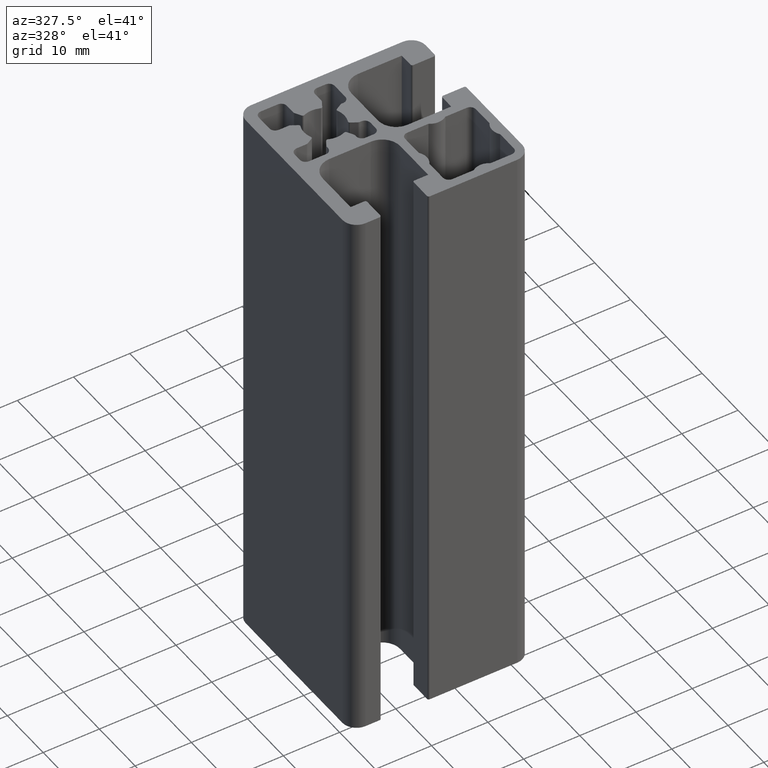
[diagram: clean part render]
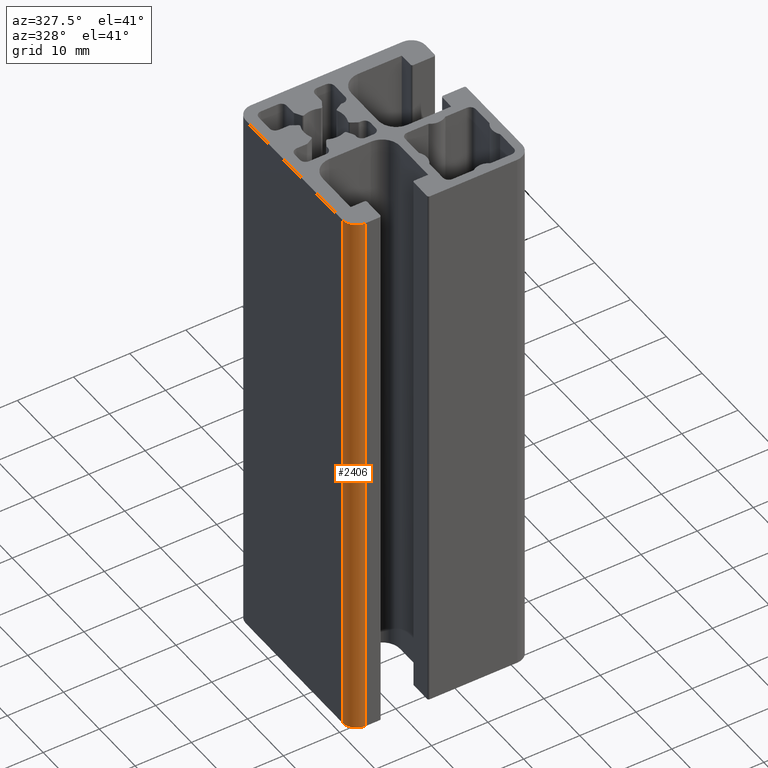
[diagram: same view with one face highlighted and labeled with its STEP entity id]
A machine part, auxiliary view. The second image highlights one B-rep face of the part: STEP entity #2406.
In plain terms, the highlighted cylindrical surface (edge-blend (fillet) strip) has radius 2.5 mm, axis along (0, 0, 1).
Its self-contained STEP definition (entity closure, byte-faithful):
#149=CIRCLE('',#2660,2.5);
#151=CIRCLE('',#2663,2.5);
#219=CYLINDRICAL_SURFACE('',#2662,2.5);
#336=FACE_OUTER_BOUND('',#460,.T.);
#460=EDGE_LOOP('',(#2087,#2088,#2089,#2090));
#685=LINE('',#4113,#909);
#686=LINE('',#4116,#910);
#909=VECTOR('',#3383,100.);
#910=VECTOR('',#3386,100.);
#1150=VERTEX_POINT('',#4103);
#1151=VERTEX_POINT('',#4105);
#1153=VERTEX_POINT('',#4112);
#1154=VERTEX_POINT('',#4114);
#1501=EDGE_CURVE('',#1151,#1150,#149,.T.);
#1505=EDGE_CURVE('',#1153,#1150,#685,.T.);
#1506=EDGE_CURVE('',#1154,#1153,#151,.T.);
#1507=EDGE_CURVE('',#1154,#1151,#686,.T.);
#2087=ORIENTED_EDGE('',*,*,#1501,.T.);
#2088=ORIENTED_EDGE('',*,*,#1505,.F.);
#2089=ORIENTED_EDGE('',*,*,#1506,.F.);
#2090=ORIENTED_EDGE('',*,*,#1507,.T.);
#2406=ADVANCED_FACE('',(#336),#219,.T.);
#2660=AXIS2_PLACEMENT_3D('',#4106,#3375,#3376);
#2662=AXIS2_PLACEMENT_3D('',#4111,#3381,#3382);
#2663=AXIS2_PLACEMENT_3D('',#4115,#3384,#3385);
#3375=DIRECTION('center_axis',(0.,0.,-1.));
#3376=DIRECTION('ref_axis',(1.,0.,0.));
#3381=DIRECTION('center_axis',(0.,0.,1.));
#3382=DIRECTION('ref_axis',(1.,0.,0.));
#3383=DIRECTION('',(0.,0.,1.));
#3384=DIRECTION('center_axis',(0.,0.,-1.));
#3385=DIRECTION('ref_axis',(1.,0.,0.));
#3386=DIRECTION('',(0.,0.,1.));
#4103=CARTESIAN_POINT('',(-9.5,-20.,100.));
#4105=CARTESIAN_POINT('',(-7.,-22.5,100.));
#4106=CARTESIAN_POINT('Origin',(-7.,-20.,100.));
#4111=CARTESIAN_POINT('Origin',(-7.,-20.,0.));
#4112=CARTESIAN_POINT('',(-9.5,-20.,0.));
#4113=CARTESIAN_POINT('',(-9.5,-20.,0.));
#4114=CARTESIAN_POINT('',(-7.,-22.5,0.));
#4115=CARTESIAN_POINT('Origin',(-7.,-20.,0.));
#4116=CARTESIAN_POINT('',(-7.,-22.5,0.));